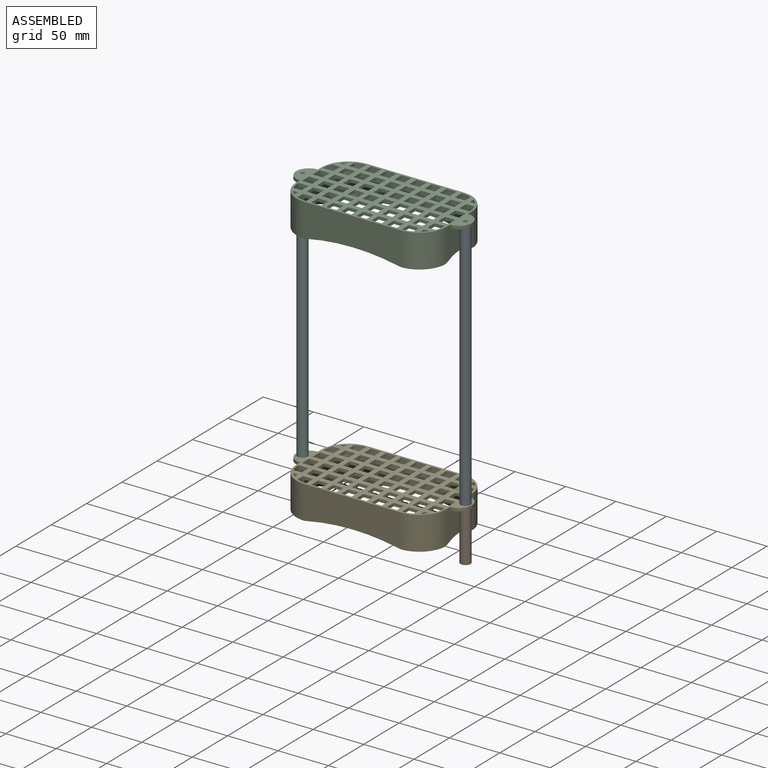
[diagram: assembled view]
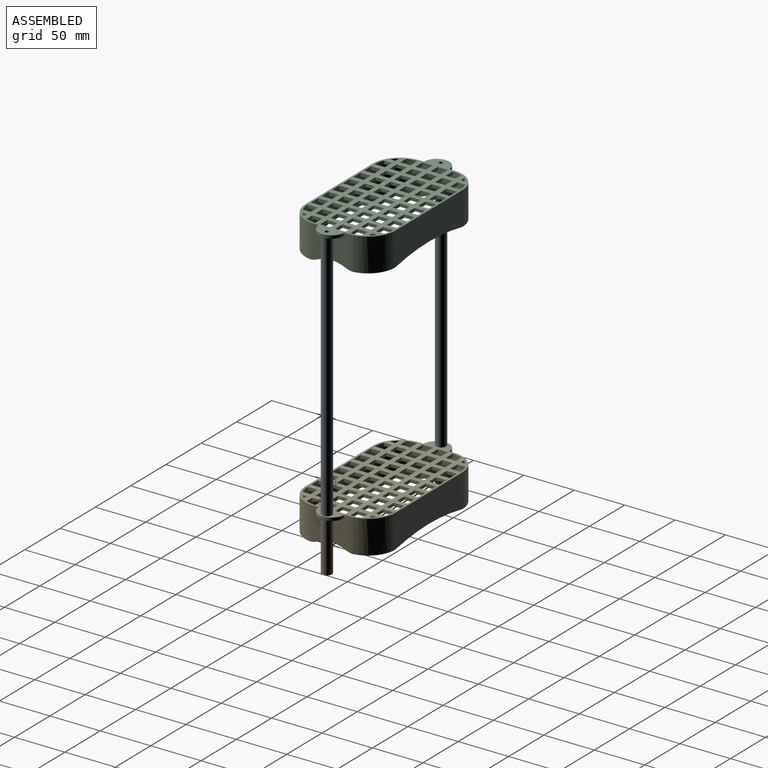
[diagram: assembled view, second angle]
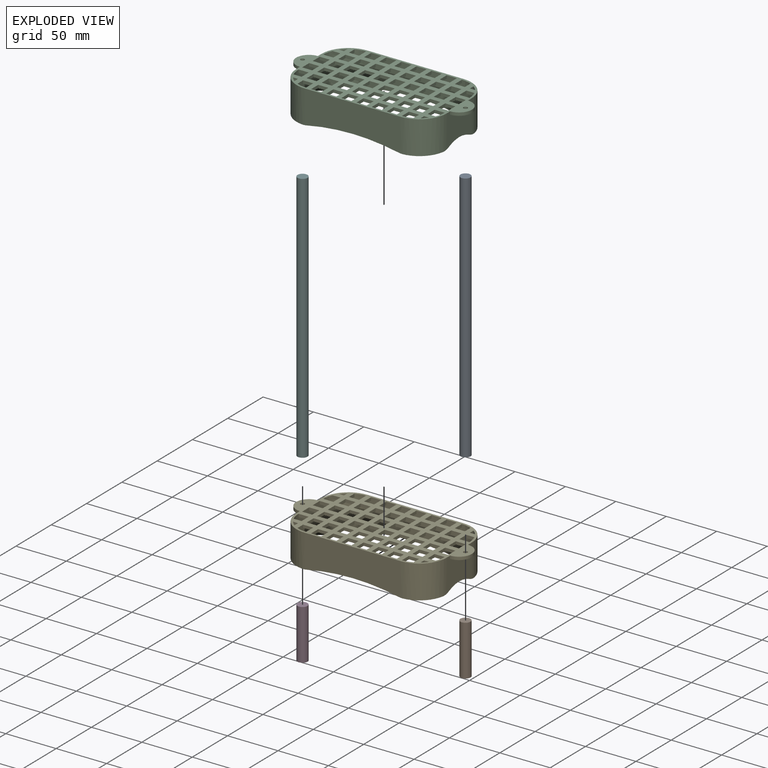
[diagram: exploded view]
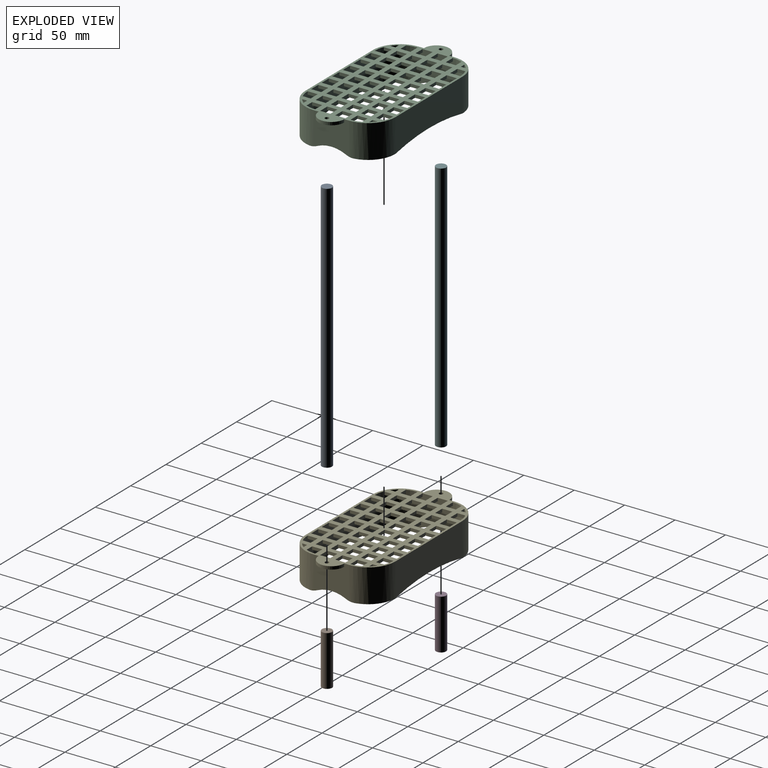
[diagram: exploded view, second angle]
ASSEMBLY  parts=6 mates=5
PART A: 3 faces, bbox 10x10x250 mm
  f0: cylinder r=5mm len=250mm, axis (0,0,-1), area 7854mm2, adj f1,f2
  f1: plane 10x10mm, normal (0,0,1), area 78.5mm2, adj f0
  f2: plane 10x10mm, normal (0,0,-1), area 78.5mm2, adj f0
PART B: 3 faces, bbox 10x10x50 mm
  f0: cylinder r=5mm len=50mm, axis (0,0,-1), area 1570.8mm2, adj f1,f2
  f1: plane 10x10mm, normal (0,0,1), area 78.5mm2, adj f0
  f2: plane 10x10mm, normal (0,0,-1), area 78.5mm2, adj f0
PART C: 248 faces, bbox 174.3x89x33 mm
  f0: plane 95x32.89mm, normal (0,1,0), area 2817.5mm2, adj f7,f225,f228,f239,f240,f241
  f1: plane 24.47x21.92mm, normal (0,0,-1), area 67.5mm2, adj f217,f225,f240,f243
  f2: plane 35x32.37mm, normal (-1,0,0), area 959mm2, adj f7,f225,f226,f230,f232,f238,f242,f243
  f3: plane 24.47x21.92mm, normal (0,0,-1), area 67.5mm2, adj f223,f226,f242,f245
  f4: plane 95x32.89mm, normal (0,-1,0), area 2817.5mm2, adj f7,f226,f227,f237,f244,f245
  f5: plane 24.47x21.92mm, normal (0,0,-1), area 67.5mm2, adj f221,f227,f244,f247
  f6: plane 35x32.37mm, normal (1,0,0), area 959mm2, adj f7,f227,f228,f233,f235,f236,f246,f247
  f7: plane 174.32x89mm, normal (0,0,1), area 7513.5mm2, adj f0,f2,f4,f6,f9,f10,f11,f12
  f8: plane 145x85mm, normal (0,0,-1), area 6188.4mm2, adj f9,f10,f11,f12,f13,f14,f15,f16
  f9: plane 5x3mm, normal (0,-1,0), area 15mm2, adj f7,f8,f10,f221
  f10: plane 5x3mm, normal (1,0,0), area 15mm2, adj f7,f8,f9,f221
  f11: plane 7.91x3mm, normal (-1,0,0), area 23.7mm2, adj f7,f8,f21,f221
  f12: plane 7.91x3mm, normal (1,0,0), area 23.7mm2, adj f7,f8,f42,f223
  f13: plane 5x3mm, normal (-1,0,0), area 15mm2, adj f7,f8,f43,f223
  f14: plane 7.91x3mm, normal (0,1,0), area 23.7mm2, adj f7,f8,f44,f223
  f15: plane 7.91x3mm, normal (0,-1,0), area 23.7mm2, adj f7,f8,f53,f217
  f16: plane 7.91x3mm, normal (0,-1,0), area 23.7mm2, adj f7,f8,f108,f219
  f17: plane 7.91x3mm, normal (0,1,0), area 23.7mm2, adj f7,f8,f117,f221
  f18: plane 7.91x3mm, normal (-1,0,0), area 23.7mm2, adj f7,f8,f131,f219
  f19: plane 7.91x3mm, normal (1,0,0), area 23.7mm2, adj f7,f8,f150,f217
  f20: plane 5x3mm, normal (0,1,0), area 15mm2, adj f7,f8,f216,f219
  f21: plane 10x3mm, normal (0,-1,0), area 30mm2, adj f7,f8,f11,f22
  f22: plane 10x3mm, normal (1,0,0), area 30mm2, adj f7,f8,f21,f221
  f23: plane 10x3mm, normal (-1,0,0), area 30mm2, adj f7,f8,f24,f222
  f24: plane 10x3mm, normal (0,-1,0), area 30mm2, adj f7,f8,f23,f25
  f25: plane 10x3mm, normal (1,0,0), area 30mm2, adj f7,f8,f24,f222
  f26: plane 10x3mm, normal (-1,0,0), area 30mm2, adj f7,f8,f27,f222
  f27: plane 10x3mm, normal (0,-1,0), area 30mm2, adj f7,f8,f26,f28
  f28: plane 10x3mm, normal (1,0,0), area 30mm2, adj f7,f8,f27,f222
  f29: plane 10x3mm, normal (-1,0,0), area 30mm2, adj f7,f8,f30,f222
  f30: plane 10x3mm, normal (0,-1,0), area 30mm2, adj f7,f8,f29,f31
  f31: plane 10x3mm, normal (1,0,0), area 30mm2, adj f7,f8,f30,f222
  f32: plane 10x3mm, normal (-1,0,0), area 30mm2, adj f7,f8,f33,f222
  f33: plane 10x3mm, normal (0,-1,0), area 30mm2, adj f7,f8,f32,f34
  f34: plane 10x3mm, normal (1,0,0), area 30mm2, adj f7,f8,f33,f222
  f35: plane 10x3mm, normal (-1,0,0), area 30mm2, adj f7,f8,f36,f222
  f36: plane 10x3mm, normal (0,-1,0), area 30mm2, adj f7,f8,f35,f37
  f37: plane 10x3mm, normal (1,0,0), area 30mm2, adj f7,f8,f36,f222
  f38: plane 10x3mm, normal (-1,0,0), area 30mm2, adj f7,f8,f39,f222
  f39: plane 10x3mm, normal (0,-1,0), area 30mm2, adj f7,f8,f38,f40
  f40: plane 10x3mm, normal (1,0,0), area 30mm2, adj f7,f8,f39,f222
  f41: plane 10x3mm, normal (-1,0,0), area 30mm2, adj f7,f8,f42,f223
  f42: plane 10x3mm, normal (0,-1,0), area 30mm2, adj f7,f8,f12,f41
  f43: plane 5x3mm, normal (0,-1,0), area 15mm2, adj f7,f8,f13,f223
  f44: plane 10x3mm, normal (-1,0,0), area 30mm2, adj f7,f8,f14,f45
  f45: plane 10x3mm, normal (0,-1,0), area 30mm2, adj f7,f8,f44,f223
  f46: plane 10x3mm, normal (0,1,0), area 30mm2, adj f7,f8,f47,f224
  f47: plane 10x3mm, normal (-1,0,0), area 30mm2, adj f7,f8,f46,f48
  f48: plane 10x3mm, normal (0,-1,0), area 30mm2, adj f7,f8,f47,f224
  f49: plane 10x3mm, normal (0,1,0), area 30mm2, adj f7,f8,f50,f224
  f50: plane 10x3mm, normal (-1,0,0), area 30mm2, adj f7,f8,f49,f51
  f51: plane 10x3mm, normal (0,-1,0), area 30mm2, adj f7,f8,f50,f224
  f52: plane 10x3mm, normal (0,1,0), area 30mm2, adj f7,f8,f53,f217
  f53: plane 10x3mm, normal (-1,0,0), area 30mm2, adj f7,f8,f15,f52
  f54: plane 5x3mm, normal (0,1,0), area 15mm2, adj f7,f8,f55,f217
  f55: plane 5x3mm, normal (-1,0,0), area 15mm2, adj f7,f8,f54,f217
  f56: plane 10x3mm, normal (0,-1,0), area 30mm2, adj f7,f8,f57,f59
  f57: plane 10x3mm, normal (1,0,0), area 30mm2, adj f7,f8,f56,f58
  f58: plane 10x3mm, normal (0,1,0), area 30mm2, adj f7,f8,f57,f59
  f59: plane 10x3mm, normal (-1,0,0), area 30mm2, adj f7,f8,f56,f58
  f60: plane 10x3mm, normal (0,-1,0), area 30mm2, adj f7,f8,f61,f63
  f61: plane 10x3mm, normal (1,0,0), area 30mm2, adj f7,f8,f60,f62
  f62: plane 10x3mm, normal (0,1,0), area 30mm2, adj f7,f8,f61,f63
  f63: plane 10x3mm, normal (-1,0,0), area 30mm2, adj f7,f8,f60,f62
  f64: plane 10x3mm, normal (0,-1,0), area 30mm2, adj f7,f8,f65,f67
  f65: plane 10x3mm, normal (1,0,0), area 30mm2, adj f7,f8,f64,f66
  f66: plane 10x3mm, normal (0,1,0), area 30mm2, adj f7,f8,f65,f67
  f67: plane 10x3mm, normal (-1,0,0), area 30mm2, adj f7,f8,f64,f66
  f68: plane 10x3mm, normal (0,-1,0), area 30mm2, adj f7,f8,f69,f71
  f69: plane 10x3mm, normal (1,0,0), area 30mm2, adj f7,f8,f68,f70
  f70: plane 10x3mm, normal (0,1,0), area 30mm2, adj f7,f8,f69,f71
  f71: plane 10x3mm, normal (-1,0,0), area 30mm2, adj f7,f8,f68,f70
  f72: plane 10x3mm, normal (0,-1,0), area 30mm2, adj f7,f8,f73,f75
  f73: plane 10x3mm, normal (1,0,0), area 30mm2, adj f7,f8,f72,f74
  f74: plane 10x3mm, normal (0,1,0), area 30mm2, adj f7,f8,f73,f75
  f75: plane 10x3mm, normal (-1,0,0), area 30mm2, adj f7,f8,f72,f74
  f76: plane 10x3mm, normal (0,-1,0), area 30mm2, adj f7,f8,f77,f79
  f77: plane 10x3mm, normal (1,0,0), area 30mm2, adj f7,f8,f76,f78
  f78: plane 10x3mm, normal (0,1,0), area 30mm2, adj f7,f8,f77,f79
  f79: plane 10x3mm, normal (-1,0,0), area 30mm2, adj f7,f8,f76,f78
  f80: plane 10x3mm, normal (0,-1,0), area 30mm2, adj f7,f8,f81,f83
  f81: plane 10x3mm, normal (1,0,0), area 30mm2, adj f7,f8,f80,f82
  f82: plane 10x3mm, normal (0,1,0), area 30mm2, adj f7,f8,f81,f83
  f83: plane 10x3mm, normal (-1,0,0), area 30mm2, adj f7,f8,f80,f82
  f84: plane 10x3mm, normal (0,-1,0), area 30mm2, adj f7,f8,f85,f87
  f85: plane 10x3mm, normal (1,0,0), area 30mm2, adj f7,f8,f84,f86
  f86: plane 10x3mm, normal (0,1,0), area 30mm2, adj f7,f8,f85,f87
  f87: plane 10x3mm, normal (-1,0,0), area 30mm2, adj f7,f8,f84,f86
  f88: plane 10x3mm, normal (0,-1,0), area 30mm2, adj f7,f8,f89,f91
  f89: plane 10x3mm, normal (1,0,0), area 30mm2, adj f7,f8,f88,f90
  f90: plane 10x3mm, normal (0,1,0), area 30mm2, adj f7,f8,f89,f91
  f91: plane 10x3mm, normal (-1,0,0), area 30mm2, adj f7,f8,f88,f90
  f92: plane 10x3mm, normal (0,-1,0), area 30mm2, adj f7,f8,f93,f95
  f93: plane 10x3mm, normal (1,0,0), area 30mm2, adj f7,f8,f92,f94
  f94: plane 10x3mm, normal (0,1,0), area 30mm2, adj f7,f8,f93,f95
  f95: plane 10x3mm, normal (-1,0,0), area 30mm2, adj f7,f8,f92,f94
  f96: plane 10x3mm, normal (0,-1,0), area 30mm2, adj f7,f8,f97,f99
  f97: plane 10x3mm, normal (1,0,0), area 30mm2, adj f7,f8,f96,f98
  f98: plane 10x3mm, normal (0,1,0), area 30mm2, adj f7,f8,f97,f99
  f99: plane 10x3mm, normal (-1,0,0), area 30mm2, adj f7,f8,f96,f98
  f100: plane 10x3mm, normal (0,-1,0), area 30mm2, adj f7,f8,f101,f103
  f101: plane 10x3mm, normal (1,0,0), area 30mm2, adj f7,f8,f100,f102
  f102: plane 10x3mm, normal (0,1,0), area 30mm2, adj f7,f8,f101,f103
  f103: plane 10x3mm, normal (-1,0,0), area 30mm2, adj f7,f8,f100,f102
  f104: plane 10x3mm, normal (0,-1,0), area 30mm2, adj f7,f8,f105,f107
  f105: plane 10x3mm, normal (1,0,0), area 30mm2, adj f7,f8,f104,f106
  f106: plane 10x3mm, normal (0,1,0), area 30mm2, adj f7,f8,f105,f107
  f107: plane 10x3mm, normal (-1,0,0), area 30mm2, adj f7,f8,f104,f106
  f108: plane 10x3mm, normal (1,0,0), area 30mm2, adj f7,f8,f16,f109
  f109: plane 10x3mm, normal (0,1,0), area 30mm2, adj f7,f8,f108,f219
  f110: plane 10x3mm, normal (0,-1,0), area 30mm2, adj f7,f8,f111,f220
  f111: plane 10x3mm, normal (1,0,0), area 30mm2, adj f7,f8,f110,f112
  f112: plane 10x3mm, normal (0,1,0), area 30mm2, adj f7,f8,f111,f220
  f113: plane 10x3mm, normal (0,-1,0), area 30mm2, adj f7,f8,f114,f220
  f114: plane 10x3mm, normal (1,0,0), area 30mm2, adj f7,f8,f113,f115
  f115: plane 10x3mm, normal (0,1,0), area 30mm2, adj f7,f8,f114,f220
  f116: plane 10x3mm, normal (0,-1,0), area 30mm2, adj f7,f8,f117,f221
  f117: plane 10x3mm, normal (1,0,0), area 30mm2, adj f7,f8,f17,f116
  f118: plane 10x3mm, normal (0,-1,0), area 30mm2, adj f7,f8,f119,f121
  f119: plane 10x3mm, normal (1,0,0), area 30mm2, adj f7,f8,f118,f120
  f120: plane 10x3mm, normal (0,1,0), area 30mm2, adj f7,f8,f119,f121
  f121: plane 10x3mm, normal (-1,0,0), area 30mm2, adj f7,f8,f118,f120
  f122: plane 10x3mm, normal (0,-1,0), area 30mm2, adj f7,f8,f123,f125
  f123: plane 10x3mm, normal (1,0,0), area 30mm2, adj f7,f8,f122,f124
  f124: plane 10x3mm, normal (0,1,0), area 30mm2, adj f7,f8,f123,f125
  f125: plane 10x3mm, normal (-1,0,0), area 30mm2, adj f7,f8,f122,f124
  f126: plane 10x3mm, normal (0,-1,0), area 30mm2, adj f7,f8,f127,f129
  f127: plane 10x3mm, normal (1,0,0), area 30mm2, adj f7,f8,f126,f128
  f128: plane 10x3mm, normal (0,1,0), area 30mm2, adj f7,f8,f127,f129
  f129: plane 10x3mm, normal (-1,0,0), area 30mm2, adj f7,f8,f126,f128
  f130: plane 10x3mm, normal (1,0,0), area 30mm2, adj f7,f8,f131,f219
  f131: plane 10x3mm, normal (0,1,0), area 30mm2, adj f7,f8,f18,f130
  f132: plane 10x3mm, normal (1,0,0), area 30mm2, adj f7,f8,f133,f218
  f133: plane 10x3mm, normal (0,1,0), area 30mm2, adj f7,f8,f132,f134
  f134: plane 10x3mm, normal (-1,0,0), area 30mm2, adj f7,f8,f133,f218
  f135: plane 10x3mm, normal (1,0,0), area 30mm2, adj f7,f8,f136,f218
  f136: plane 10x3mm, normal (0,1,0), area 30mm2, adj f7,f8,f135,f137
  f137: plane 10x3mm, normal (-1,0,0), area 30mm2, adj f7,f8,f136,f218
  f138: plane 10x3mm, normal (1,0,0), area 30mm2, adj f7,f8,f139,f218
  f139: plane 10x3mm, normal (0,1,0), area 30mm2, adj f7,f8,f138,f140
  f140: plane 10x3mm, normal (-1,0,0), area 30mm2, adj f7,f8,f139,f218
  f141: plane 10x3mm, normal (1,0,0), area 30mm2, adj f7,f8,f142,f218
  f142: plane 10x3mm, normal (0,1,0), area 30mm2, adj f7,f8,f141,f143
  f143: plane 10x3mm, normal (-1,0,0), area 30mm2, adj f7,f8,f142,f218
  f144: plane 10x3mm, normal (1,0,0), area 30mm2, adj f7,f8,f145,f218
  f145: plane 10x3mm, normal (0,1,0), area 30mm2, adj f7,f8,f144,f146
  f146: plane 10x3mm, normal (-1,0,0), area 30mm2, adj f7,f8,f145,f218
  f147: plane 10x3mm, normal (1,0,0), area 30mm2, adj f7,f8,f148,f218
  f148: plane 10x3mm, normal (0,1,0), area 30mm2, adj f7,f8,f147,f149
  f149: plane 10x3mm, normal (-1,0,0), area 30mm2, adj f7,f8,f148,f218
  f150: plane 10x3mm, normal (0,1,0), area 30mm2, adj f7,f8,f19,f151
  f151: plane 10x3mm, normal (-1,0,0), area 30mm2, adj f7,f8,f150,f217
  f152: plane 10x3mm, normal (0,-1,0), area 30mm2, adj f7,f8,f153,f155
  f153: plane 10x3mm, normal (1,0,0), area 30mm2, adj f7,f8,f152,f154
  f154: plane 10x3mm, normal (0,1,0), area 30mm2, adj f7,f8,f153,f155
  f155: plane 10x3mm, normal (-1,0,0), area 30mm2, adj f7,f8,f152,f154
  f156: plane 10x3mm, normal (0,-1,0), area 30mm2, adj f7,f8,f157,f159
  f157: plane 10x3mm, normal (1,0,0), area 30mm2, adj f7,f8,f156,f158
  f158: plane 10x3mm, normal (0,1,0), area 30mm2, adj f7,f8,f157,f159
  f159: plane 10x3mm, normal (-1,0,0), area 30mm2, adj f7,f8,f156,f158
  f160: plane 10x3mm, normal (0,-1,0), area 30mm2, adj f7,f8,f161,f163
  f161: plane 10x3mm, normal (1,0,0), area 30mm2, adj f7,f8,f160,f162
  f162: plane 10x3mm, normal (0,1,0), area 30mm2, adj f7,f8,f161,f163
  f163: plane 10x3mm, normal (-1,0,0), area 30mm2, adj f7,f8,f160,f162
  f164: plane 10x3mm, normal (0,-1,0), area 30mm2, adj f7,f8,f165,f167
  f165: plane 10x3mm, normal (1,0,0), area 30mm2, adj f7,f8,f164,f166
  f166: plane 10x3mm, normal (0,1,0), area 30mm2, adj f7,f8,f165,f167
  f167: plane 10x3mm, normal (-1,0,0), area 30mm2, adj f7,f8,f164,f166
  f168: plane 10x3mm, normal (0,-1,0), area 30mm2, adj f7,f8,f169,f171
  f169: plane 10x3mm, normal (1,0,0), area 30mm2, adj f7,f8,f168,f170
  f170: plane 10x3mm, normal (0,1,0), area 30mm2, adj f7,f8,f169,f171
  f171: plane 10x3mm, normal (-1,0,0), area 30mm2, adj f7,f8,f168,f170
  f172: plane 10x3mm, normal (0,-1,0), area 30mm2, adj f7,f8,f173,f175
  f173: plane 10x3mm, normal (1,0,0), area 30mm2, adj f7,f8,f172,f174
  f174: plane 10x3mm, normal (0,1,0), area 30mm2, adj f7,f8,f173,f175
  f175: plane 10x3mm, normal (-1,0,0), area 30mm2, adj f7,f8,f172,f174
  f176: plane 10x3mm, normal (0,-1,0), area 30mm2, adj f7,f8,f177,f179
  f177: plane 10x3mm, normal (1,0,0), area 30mm2, adj f7,f8,f176,f178
  f178: plane 10x3mm, normal (0,1,0), area 30mm2, adj f7,f8,f177,f179
  f179: plane 10x3mm, normal (-1,0,0), area 30mm2, adj f7,f8,f176,f178
  f180: plane 10x3mm, normal (0,-1,0), area 30mm2, adj f7,f8,f181,f183
  f181: plane 10x3mm, normal (1,0,0), area 30mm2, adj f7,f8,f180,f182
  f182: plane 10x3mm, normal (0,1,0), area 30mm2, adj f7,f8,f181,f183
  f183: plane 10x3mm, normal (-1,0,0), area 30mm2, adj f7,f8,f180,f182
  f184: plane 10x3mm, normal (0,-1,0), area 30mm2, adj f7,f8,f185,f187
  f185: plane 10x3mm, normal (1,0,0), area 30mm2, adj f7,f8,f184,f186
  f186: plane 10x3mm, normal (0,1,0), area 30mm2, adj f7,f8,f185,f187
  f187: plane 10x3mm, normal (-1,0,0), area 30mm2, adj f7,f8,f184,f186
  f188: plane 10x3mm, normal (0,-1,0), area 30mm2, adj f7,f8,f189,f191
  f189: plane 10x3mm, normal (1,0,0), area 30mm2, adj f7,f8,f188,f190
  f190: plane 10x3mm, normal (0,1,0), area 30mm2, adj f7,f8,f189,f191
  f191: plane 10x3mm, normal (-1,0,0), area 30mm2, adj f7,f8,f188,f190
  f192: plane 10x3mm, normal (0,-1,0), area 30mm2, adj f7,f8,f193,f195
  f193: plane 10x3mm, normal (1,0,0), area 30mm2, adj f7,f8,f192,f194
  f194: plane 10x3mm, normal (0,1,0), area 30mm2, adj f7,f8,f193,f195
  f195: plane 10x3mm, normal (-1,0,0), area 30mm2, adj f7,f8,f192,f194
  f196: plane 10x3mm, normal (0,-1,0), area 30mm2, adj f7,f8,f197,f199
  f197: plane 10x3mm, normal (1,0,0), area 30mm2, adj f7,f8,f196,f198
  f198: plane 10x3mm, normal (0,1,0), area 30mm2, adj f7,f8,f197,f199
  f199: plane 10x3mm, normal (-1,0,0), area 30mm2, adj f7,f8,f196,f198
  f200: plane 10x3mm, normal (0,-1,0), area 30mm2, adj f7,f8,f201,f203
  f201: plane 10x3mm, normal (1,0,0), area 30mm2, adj f7,f8,f200,f202
  f202: plane 10x3mm, normal (0,1,0), area 30mm2, adj f7,f8,f201,f203
  f203: plane 10x3mm, normal (-1,0,0), area 30mm2, adj f7,f8,f200,f202
  f204: plane 10x3mm, normal (0,-1,0), area 30mm2, adj f7,f8,f205,f207
  f205: plane 10x3mm, normal (1,0,0), area 30mm2, adj f7,f8,f204,f206
  f206: plane 10x3mm, normal (0,1,0), area 30mm2, adj f7,f8,f205,f207
  f207: plane 10x3mm, normal (-1,0,0), area 30mm2, adj f7,f8,f204,f206
  f208: plane 10x3mm, normal (0,-1,0), area 30mm2, adj f7,f8,f209,f211
  f209: plane 10x3mm, normal (1,0,0), area 30mm2, adj f7,f8,f208,f210
  f210: plane 10x3mm, normal (0,1,0), area 30mm2, adj f7,f8,f209,f211
  f211: plane 10x3mm, normal (-1,0,0), area 30mm2, adj f7,f8,f208,f210
  f212: plane 10x3mm, normal (0,-1,0), area 30mm2, adj f7,f8,f213,f215
  f213: plane 10x3mm, normal (1,0,0), area 30mm2, adj f7,f8,f212,f214
  f214: plane 10x3mm, normal (0,1,0), area 30mm2, adj f7,f8,f213,f215
  f215: plane 10x3mm, normal (-1,0,0), area 30mm2, adj f7,f8,f212,f214
  f216: plane 5x3mm, normal (1,0,0), area 15mm2, adj f7,f8,f20,f219
  f217: cylinder r=25mm len=33mm, axis (0,0,1), area 1259.9mm2, adj f1,f7,f8,f15,f19,f52,f54,f55
  f218: plane 95x32.89mm, normal (0,-1,0), area 2712.5mm2, adj f7,f8,f132,f134,f135,f137,f138,f140
  f219: cylinder r=25mm len=33mm, axis (0,0,1), area 1259.9mm2, adj f7,f8,f16,f18,f20,f109,f130,f216
  f220: plane 35x32.37mm, normal (-1,0,0), area 990mm2, adj f7,f8,f110,f112,f113,f115,f219,f221
  f221: cylinder r=25mm len=33mm, axis (0,0,1), area 1259.9mm2, adj f5,f7,f8,f9,f10,f11,f17,f22
  f222: plane 95x32.89mm, normal (0,1,0), area 2712.5mm2, adj f7,f8,f23,f25,f26,f28,f29,f31
  f223: cylinder r=25mm len=33mm, axis (0,0,1), area 1259.9mm2, adj f3,f7,f8,f12,f13,f14,f41,f43
  f224: plane 35x32.37mm, normal (1,0,0), area 990mm2, adj f7,f8,f46,f48,f49,f51,f217,f223
  f225: cylinder r=27mm len=33mm, axis (0,0,1), area 1398.4mm2, adj f0,f1,f2,f7,f240,f243
  f226: cylinder r=27mm len=33mm, axis (0,0,1), area 1398.4mm2, adj f2,f3,f4,f7,f242,f245
  f227: cylinder r=27mm len=33mm, axis (0,0,1), area 1398.4mm2, adj f4,f5,f6,f7,f244,f247
  f228: cylinder r=27mm len=33mm, axis (0,0,1), area 1398.4mm2, adj f0,f6,f7,f229,f241,f246
  f229: plane 24.47x21.92mm, normal (0,0,-1), area 67.5mm2, adj f219,f228,f241,f246
  f230: cylinder r=12.66mm len=25.32mm, axis (0,0,1), area 119.3mm2, adj f2,f7,f232
  f231: cylinder r=2mm len=4mm, axis (0,0,1), area 37.7mm2, adj f7,f232
  f232: plane 25.32x12.66mm, normal (0,0,-1), area 239.2mm2, adj f2,f230,f231
  f233: cylinder r=12.66mm len=25.32mm, axis (0,0,1), area 119.3mm2, adj f6,f7,f235
  f234: cylinder r=2mm len=4mm, axis (0,0,1), area 37.7mm2, adj f7,f235
  f235: plane 25.32x12.66mm, normal (0,0,-1), area 239.2mm2, adj f6,f233,f234
  f236: cylinder r=33.12mm len=28.06mm, axis (1,0,0), area 57.9mm2, adj f6,f220,f246,f247
  f237: cylinder r=228.12mm len=91.13mm, axis (0,-1,0), area 183.5mm2, adj f4,f222,f244,f245
  f238: cylinder r=33.12mm len=28.06mm, axis (-1,0,0), area 57.9mm2, adj f2,f224,f242,f243
  f239: cylinder r=228.12mm len=91.13mm, axis (0,1,0), area 183.5mm2, adj f0,f218,f240,f241
  f240: cylinder r=20mm len=4mm, axis (0,1,0), area 8.1mm2, adj f0,f1,f217,f218,f225,f239
  f241: cylinder r=20mm len=4mm, axis (0,1,0), area 8.1mm2, adj f0,f218,f219,f228,f229,f239
  f242: cylinder r=20mm len=8.47mm, axis (-1,0,0), area 17.6mm2, adj f2,f3,f223,f224,f226,f238
  f243: cylinder r=20mm len=8.47mm, axis (-1,0,0), area 17.6mm2, adj f1,f2,f217,f224,f225,f238
  f244: cylinder r=20mm len=4mm, axis (0,-1,0), area 8.1mm2, adj f4,f5,f221,f222,f227,f237
  f245: cylinder r=20mm len=4mm, axis (0,-1,0), area 8.1mm2, adj f3,f4,f222,f223,f226,f237
  f246: cylinder r=20mm len=8.47mm, axis (1,0,0), area 17.6mm2, adj f6,f219,f220,f228,f229,f236
  f247: cylinder r=20mm len=8.47mm, axis (1,0,0), area 17.6mm2, adj f5,f6,f220,f221,f227,f236
PART D: same geometry as B
PART E: same geometry as C
PART F: same geometry as A
PLACE A t=(67.15,13.75,-97.04)mm
PLACE B t=(34.94,-5.67,-150.04)mm
PLACE C t=(-54,-20.01,152.96)mm
PLACE D t=(-126.72,-5.67,-150.04)mm
PLACE E t=(-54,-20.01,-100.04)mm
PLACE F t=(-94.51,13.75,-97.04)mm
MATE fastened E.f231 <-> D.f0  axis (0,0,-1) through (-126.72,-5.67,-100.04)mm
MATE fastened A.f0 <-> C.f234  axis (0,0,-1) through (34.94,-5.67,152.96)mm
MATE fastened F.f0 <-> E.f231  axis (0,0,-1) through (-126.72,-5.67,-97.04)mm
MATE fastened C.f231 <-> F.f0  axis (0,0,-1) through (-126.72,-5.67,152.96)mm
MATE fastened B.f0 <-> E.f234  axis (0,0,1) through (34.94,-5.67,-100.04)mm
